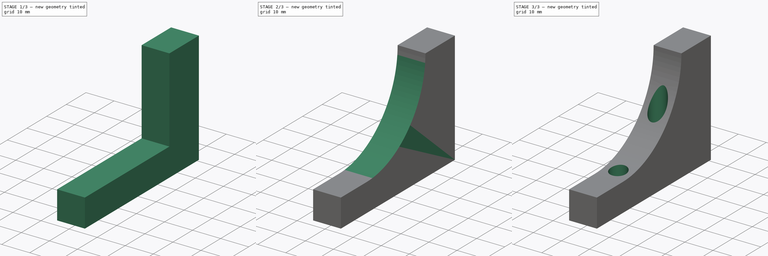
[diagram: build sequence overview — one tinted view per stage of 3, left to right]
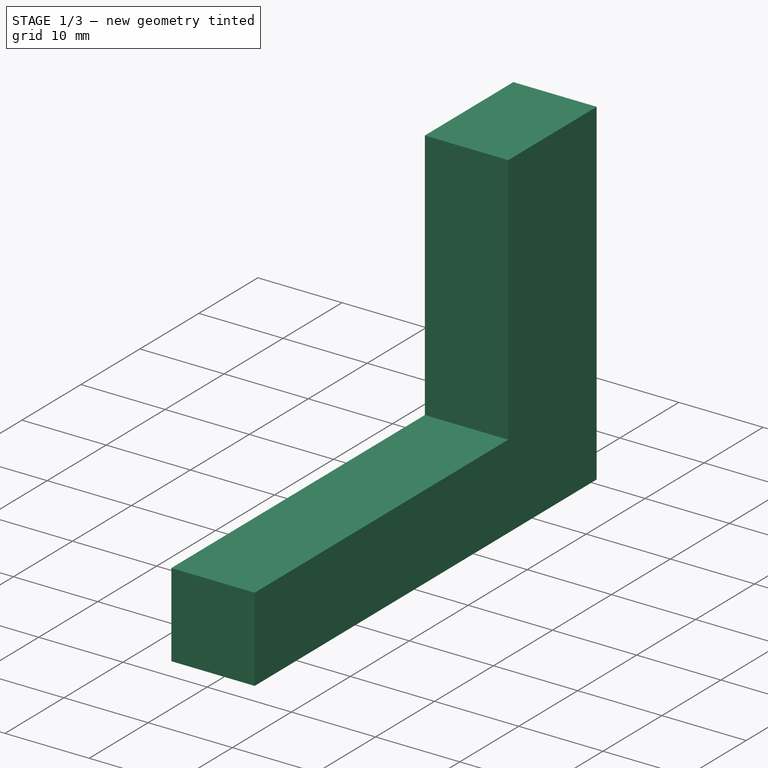
[diagram: stage 1 of 3 — iso view after this stage's code; geometry added in this stage tinted green]
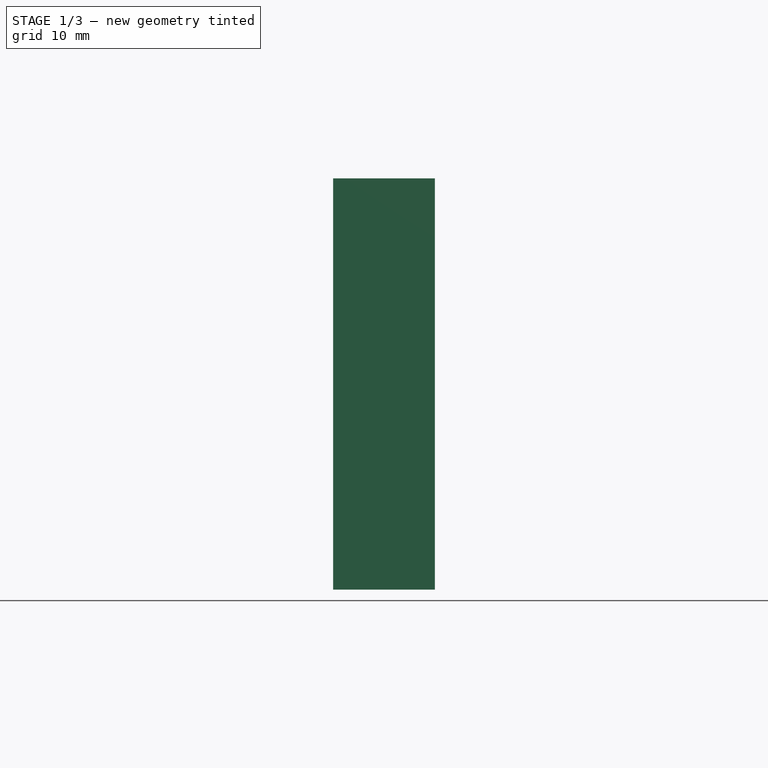
[diagram: stage 1 of 3 — front view after this stage's code; geometry added in this stage tinted green]
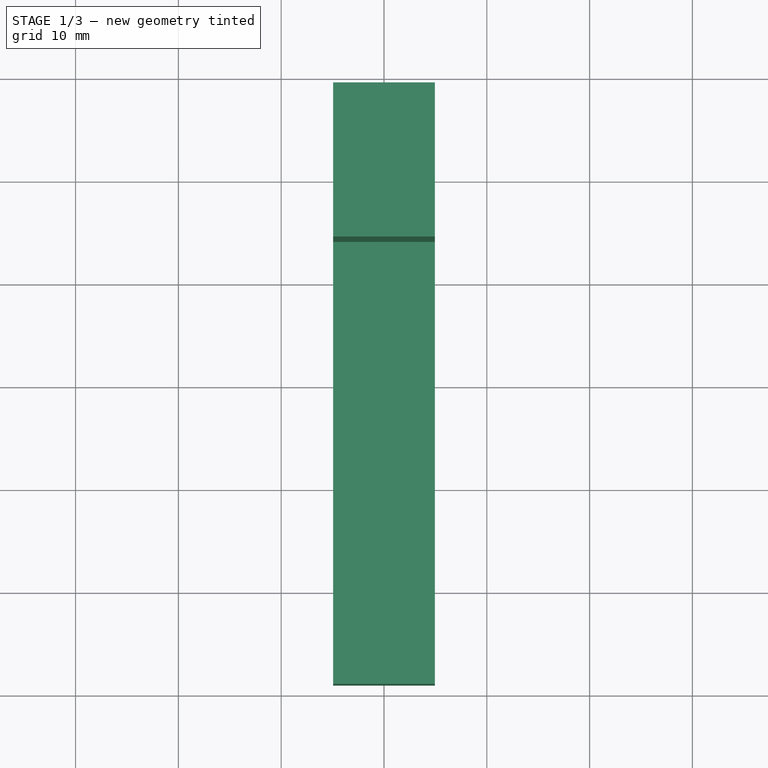
[diagram: stage 1 of 3 — top view after this stage's code; geometry added in this stage tinted green]
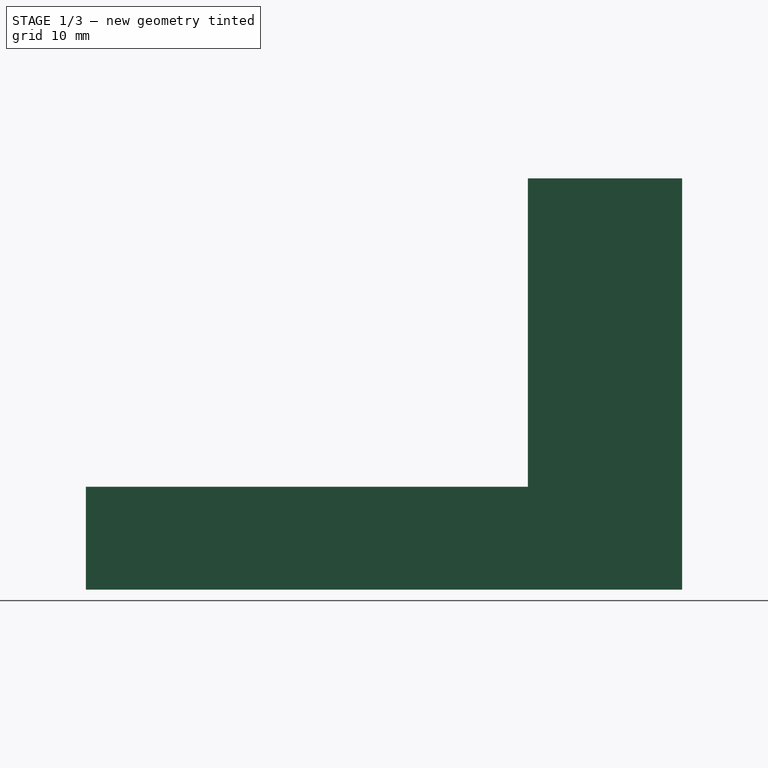
[diagram: stage 1 of 3 — right view after this stage's code; geometry added in this stage tinted green]
FCSTD DOCUMENT  (FreeCAD 0.19R19180 (Git))
Label: rear_foot
License: All rights reserved
LicenseURL: http://en.wikipedia.org/wiki/All_rights_reserved
objects: Sketcher::SketchObject×4, PartDesign::Pocket×3, PartDesign::Pad×1, PartDesign::Fillet×1, PartDesign::Body×1
note: 14 computed .brp shape members not serialized (recipe doc carries the construction recipe); baked Part::Feature solids carry a one-line shape summary decoded from their .brp

FEATURE [Sketcher::SketchObject] Sketch
  MapMode = 5
  Support = -> [XY_Plane]
  sketch-geometry (4):
    g0: LineSegment StartX=-4.95 StartY=29 StartZ=0 EndX=4.95 EndY=29 EndZ=0
    g1: LineSegment StartX=4.95 StartY=29 StartZ=0 EndX=4.95 EndY=-29 EndZ=0
    g2: LineSegment StartX=4.95 StartY=-29 StartZ=0 EndX=-4.95 EndY=-29 EndZ=0
    g3: LineSegment StartX=-4.95 StartY=-29 StartZ=0 EndX=-4.95 EndY=29 EndZ=0
  constraints (12):
    c: Coincident(g0,g1)
    c: Coincident(g1,g2)
    c: Coincident(g2,g3)
    c: Coincident(g3,g0)
    c: Horizontal(g0)
    c: Horizontal(g2)
    c: Vertical(g1)
    c: Vertical(g3)
    c: DistanceX(g0,g0) = 9.9
    c: DistanceY(g1,g1) = 58
    c: DistanceY(g-1,g0) = 29
    c: DistanceX(g0,g-1) = 4.95
FEATURE [PartDesign::Pad] Pad
  Length = 40
  Length2 = 100
  Profile = -> Sketch
  Type = 0
FEATURE [Sketcher::SketchObject] Sketch001
  ExternalGeometry = -> [Pad]
  MapMode = 5
  Placement = pos=(0,0,40) rot=(0,0,1;0rad)
  Support = -> [Pad]
  sketch-geometry (4):
    g0: LineSegment StartX=-4.95 StartY=14 StartZ=0 EndX=4.95 EndY=14 EndZ=0
    g1: LineSegment StartX=4.95 StartY=14 StartZ=0 EndX=4.95 EndY=-29 EndZ=0
    g2: LineSegment StartX=4.95 StartY=-29 StartZ=0 EndX=-4.95 EndY=-29 EndZ=0
    g3: LineSegment StartX=-4.95 StartY=-29 StartZ=0 EndX=-4.95 EndY=14 EndZ=0
  constraints (11):
    c: Coincident(g0,g1)
    c: Coincident(g1,g2)
    c: Coincident(g2,g3)
    c: Coincident(g3,g0)
    c: Horizontal(g0)
    c: Horizontal(g2)
    c: Vertical(g1)
    c: Vertical(g3)
    c: Coincident(g2,g-4)
    c: DistanceX(g1,g-3) = 0
    c: DistanceY(g0,g-5) = 15
FEATURE [PartDesign::Pocket] Pocket
  BaseFeature = -> Pad
  Length = 30
  Length2 = 100
  Profile = -> Sketch001
  Type = 0
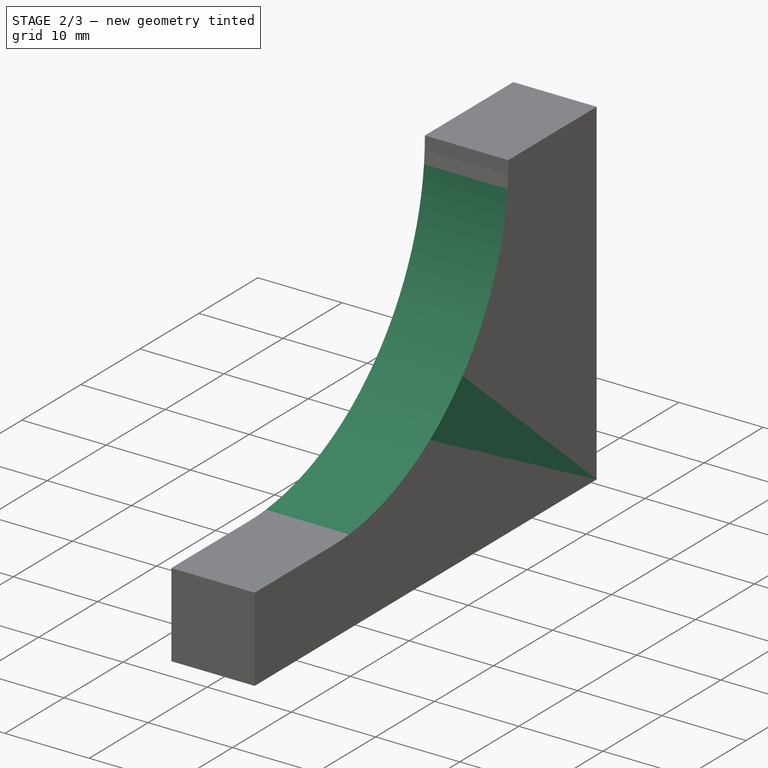
[diagram: stage 2 of 3 — iso view after this stage's code; geometry added in this stage tinted green]
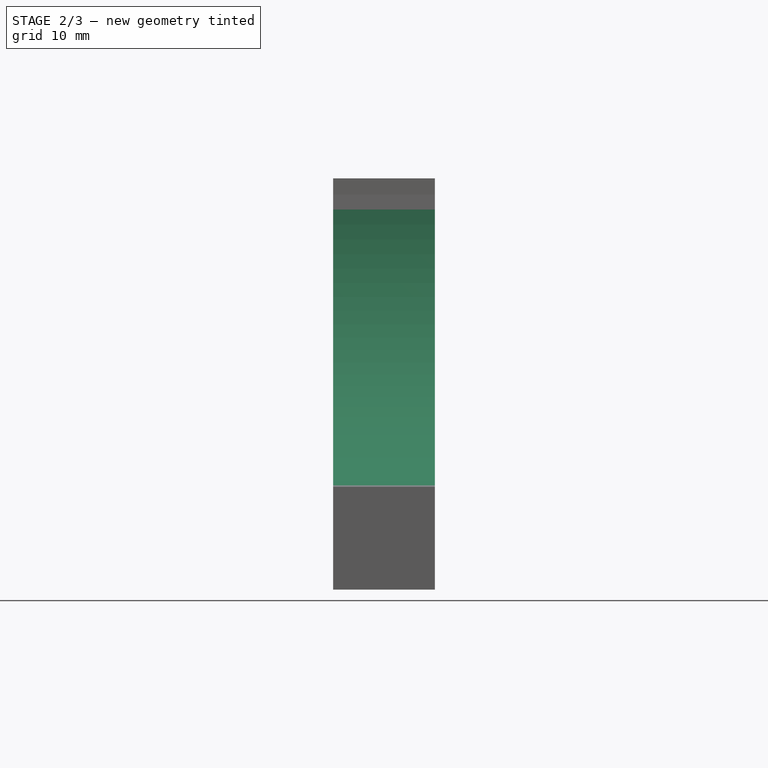
[diagram: stage 2 of 3 — front view after this stage's code; geometry added in this stage tinted green]
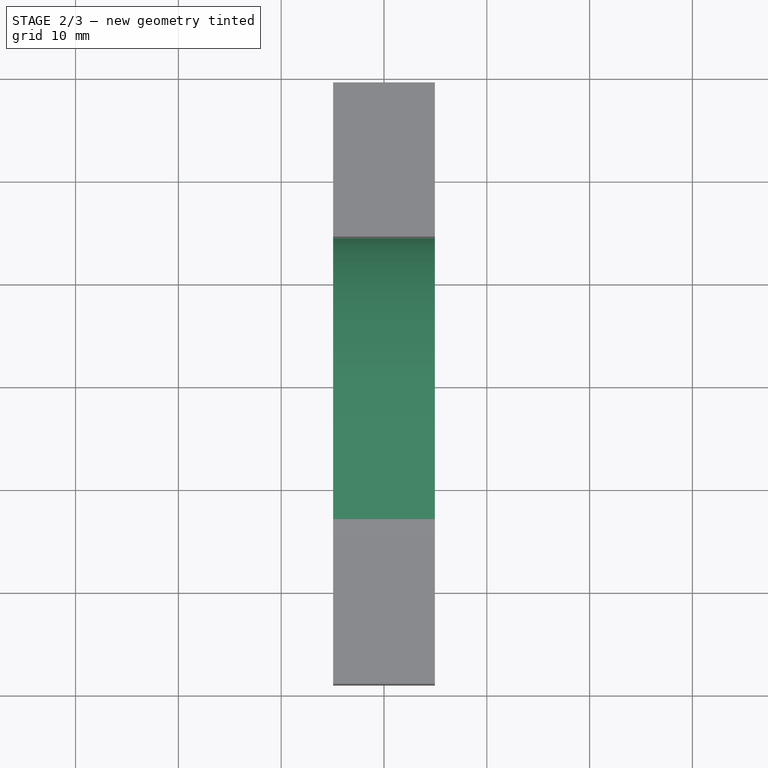
[diagram: stage 2 of 3 — top view after this stage's code; geometry added in this stage tinted green]
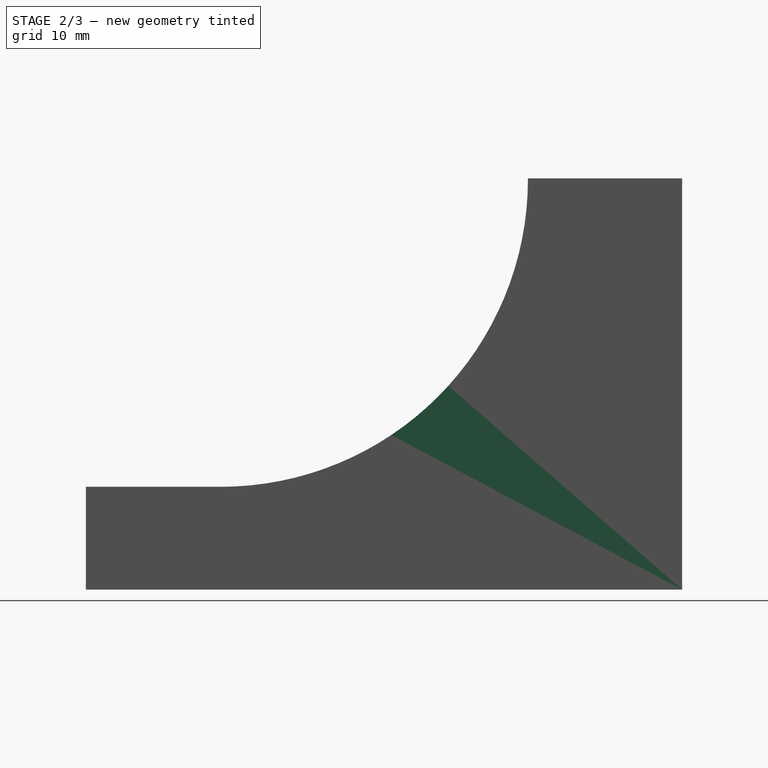
[diagram: stage 2 of 3 — right view after this stage's code; geometry added in this stage tinted green]
FEATURE [PartDesign::Fillet] Fillet
  Base = -> Pocket [Edge17]
  BaseFeature = -> Pocket
  Radius = 29.9
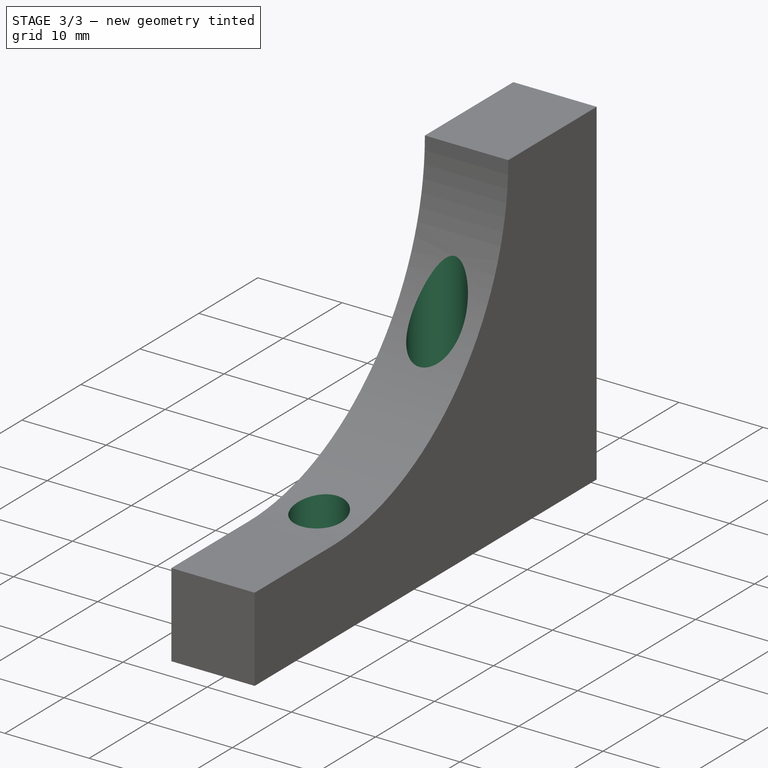
[diagram: stage 3 of 3 — iso view after this stage's code; geometry added in this stage tinted green]
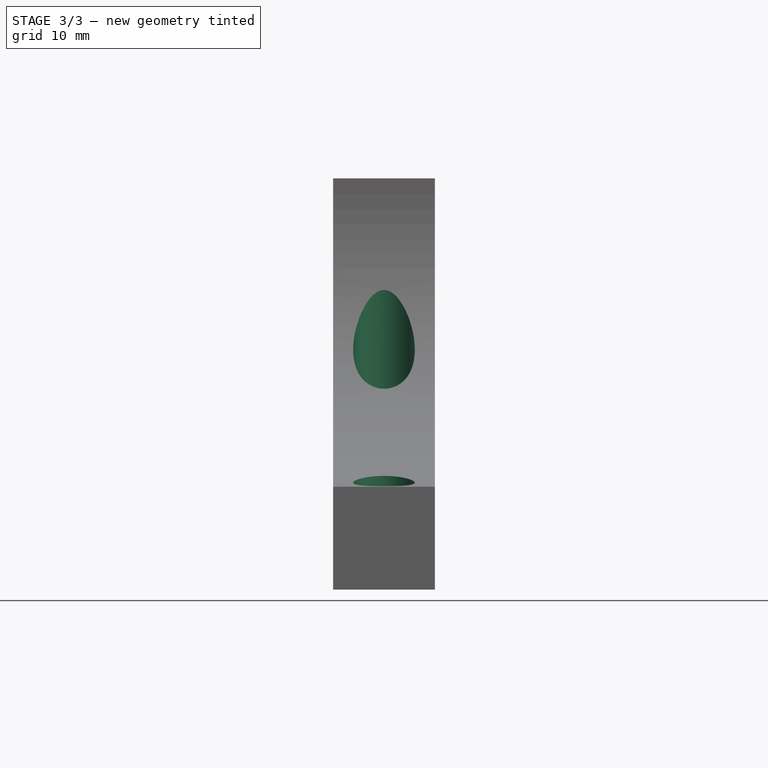
[diagram: stage 3 of 3 — front view after this stage's code; geometry added in this stage tinted green]
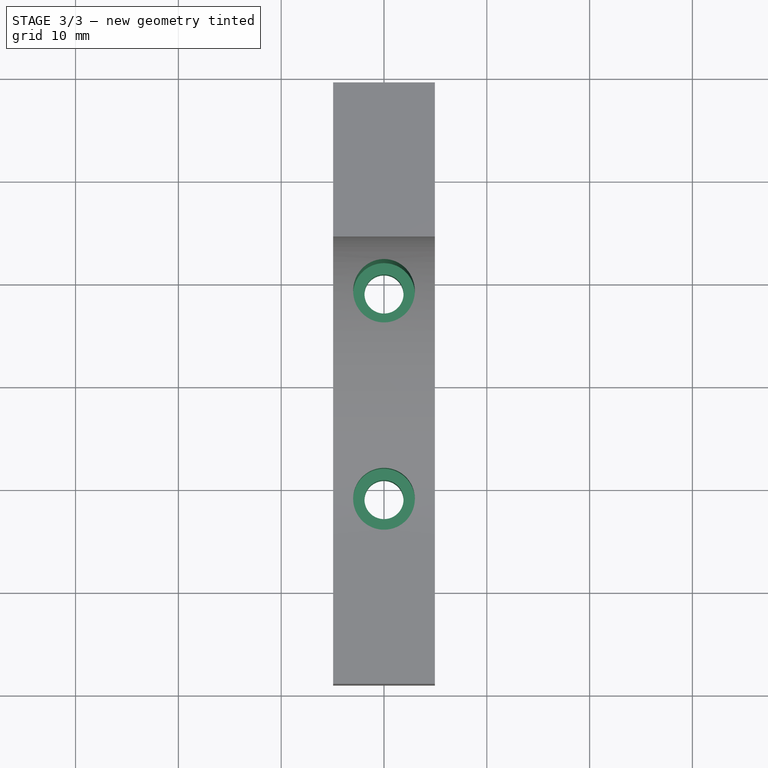
[diagram: stage 3 of 3 — top view after this stage's code; geometry added in this stage tinted green]
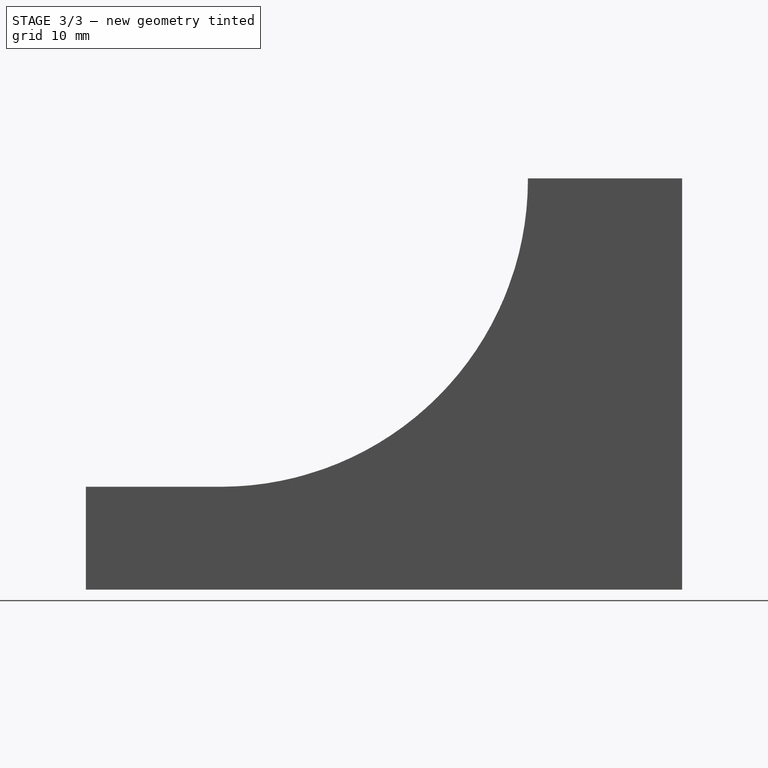
[diagram: stage 3 of 3 — right view after this stage's code; geometry added in this stage tinted green]
FEATURE [Sketcher::SketchObject] Sketch002
  ExternalGeometry = -> [Fillet]
  MapMode = 5
  Placement = pos=(0,0,40) rot=(0,0,1;0rad)
  Support = -> [Fillet]
  sketch-geometry (2):
    g0: Circle CenterX=0 CenterY=9 CenterZ=0 NormalX=0 NormalY=0 NormalZ=1 AngleXU=0 Radius=3
    g1: Circle CenterX=0 CenterY=-11 CenterZ=0 NormalX=0 NormalY=0 NormalZ=1 AngleXU=0 Radius=3
  constraints (6):
    c: PointOnObject(g0,g-2)
    c: PointOnObject(g1,g-2)
    c: Diameter(g0) = 6
    c: Equal(g0,g1)
    c: DistanceY(g-3,g1) = 18
    c: DistanceY(g1,g0) = 20
FEATURE [PartDesign::Pocket] Pocket001
  BaseFeature = -> Fillet
  Length = 34
  Length2 = 100
  Profile = -> Sketch002
  Type = 0
FEATURE [Sketcher::SketchObject] Sketch003
  ExternalGeometry = -> [Pocket001]
  MapMode = 5
  Placement = pos=(0,0,0) rot=(1,0,0;3.14159rad)
  Support = -> [Pocket001]
  sketch-geometry (2):
    g0: Circle CenterX=0 CenterY=-9 CenterZ=0 NormalX=0 NormalY=0 NormalZ=1 AngleXU=0 Radius=1.9
    g1: Circle CenterX=0 CenterY=11 CenterZ=0 NormalX=0 NormalY=0 NormalZ=1 AngleXU=0 Radius=1.9
  constraints (6):
    c: PointOnObject(g0,g-2)
    c: PointOnObject(g1,g-2)
    c: Diameter(g1) = 3.8
    c: Equal(g1,g0)
    c: DistanceY(g0,g1) = 20
    c: DistanceY(g1,g-4) = 18
FEATURE [PartDesign::Pocket] Pocket002
  BaseFeature = -> Pocket001
  Length = 6
  Length2 = 100
  Profile = -> Sketch003
  Type = 0
FEATURE [PartDesign::Body] Body
  Group = -> [Sketch,Pad,Sketch001,Pocket,Fillet,Sketch002,Pocket001,Sketch003,Pocket002]
  Origin = -> Origin
  Tip = -> Pocket002
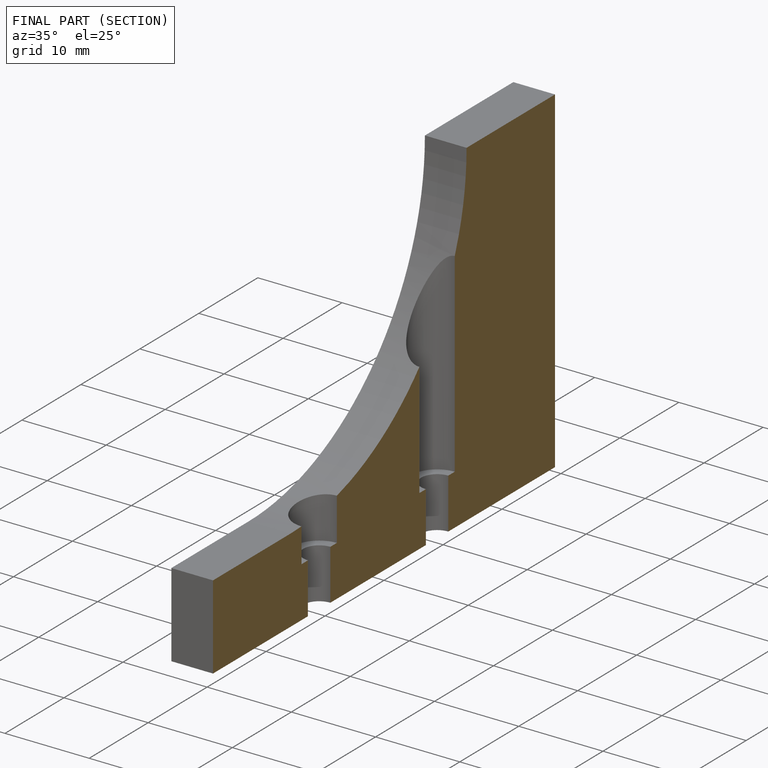
[diagram: finished part — half-section view (interior)]
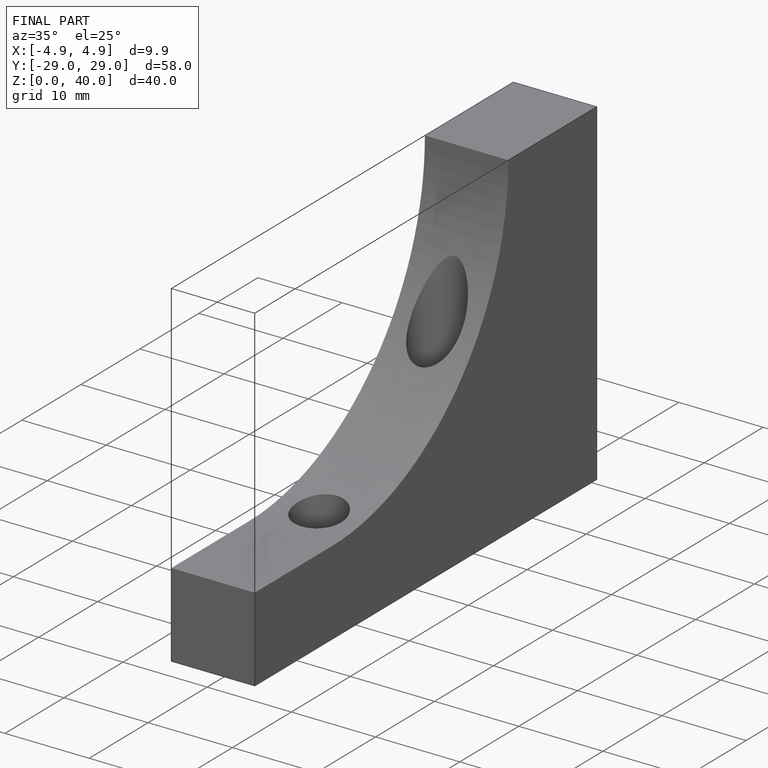
[diagram: finished part — iso view with bounding-box wireframe]
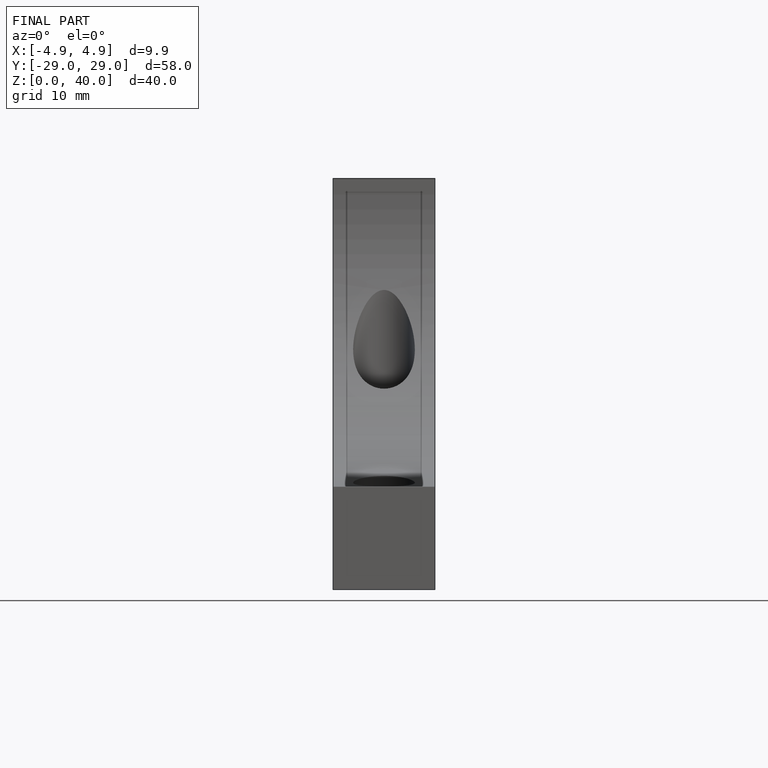
[diagram: finished part — front view with bounding-box wireframe]
